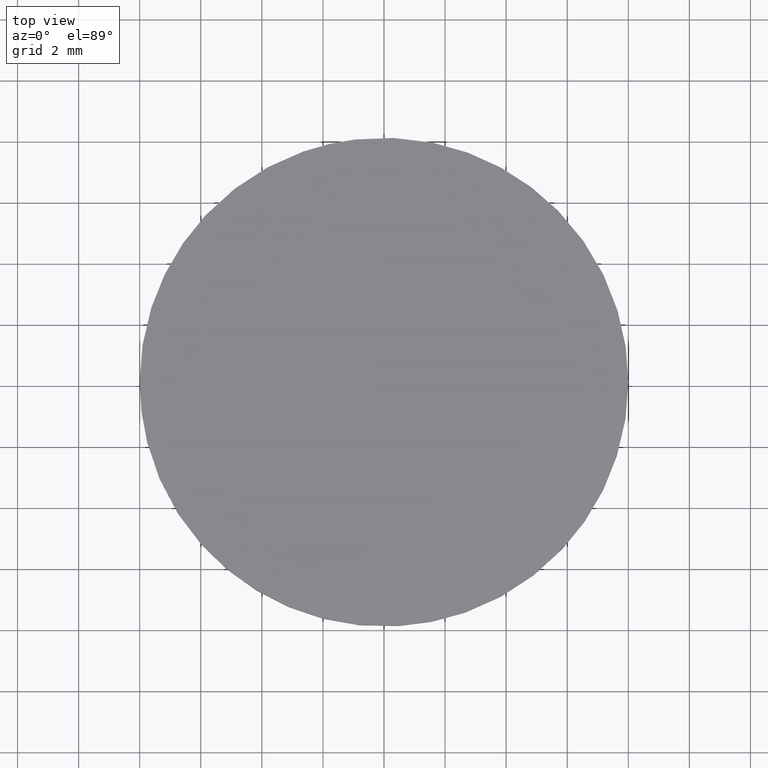
[diagram: clean part render]
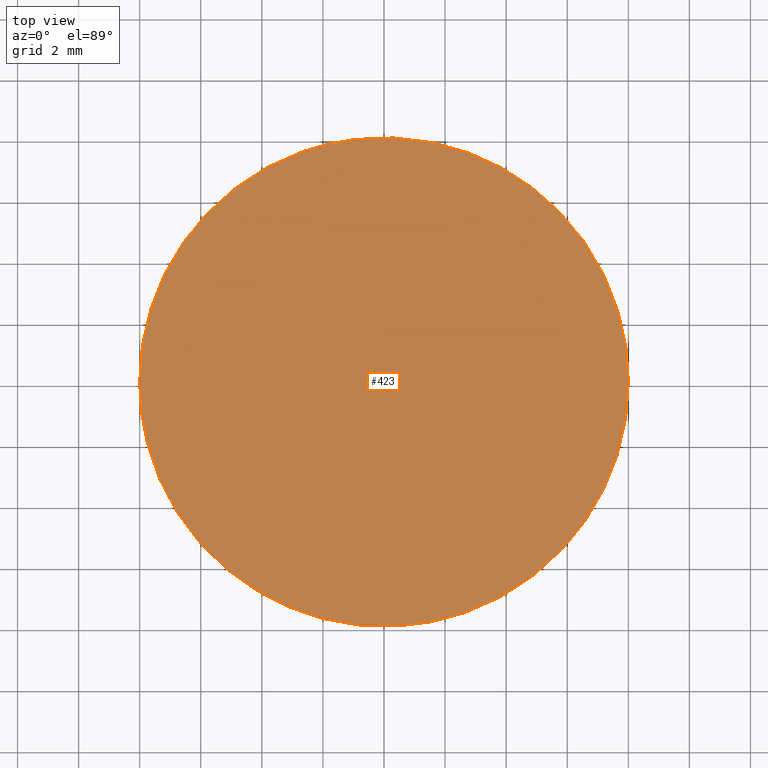
[diagram: same view with one face highlighted and labeled with its STEP entity id]
A machine part, top view. The second image highlights one B-rep face of the part: STEP entity #423.
In plain terms, the highlighted face is a freeform B-spline surface patch.
Its self-contained STEP definition (entity closure, byte-faithful):
#66=CARTESIAN_POINT('',(-0.944268819982941,7.944076812039399,7.899999999999874));
#67=VERTEX_POINT('',#66);
#68=CARTESIAN_POINT('',(8.0,0.0,7.900000000000000));
#69=VERTEX_POINT('',#68);
#70=CARTESIAN_POINT('',(-0.944268819982941,7.944076812039400,7.899999999999874));
#71=CARTESIAN_POINT('',(-0.473790401847546,8.0,7.900000000000000));
#72=CARTESIAN_POINT('',(0.0,8.0,7.900000000000000));
#73=CARTESIAN_POINT('',(8.0,8.0,7.900000000000000));
#74=CARTESIAN_POINT('',(8.0,0.0,7.900000000000000));
#82=(BOUNDED_CURVE()B_SPLINE_CURVE(2,(#70,#71,#72,#73,#74),.UNSPECIFIED.,.F.,.U.)B_SPLINE_CURVE_WITH_KNOTS((3,2,3),(0.229562581104653,0.250000000000000,0.500000000000000),.UNSPECIFIED.)CURVE()GEOMETRIC_REPRESENTATION_ITEM()RATIONAL_B_SPLINE_CURVE((0.956026965066855,0.976056074382012,1.0,0.707106781186548,1.0))REPRESENTATION_ITEM(''));
#83=EDGE_CURVE('',#67,#69,#82,.T.);
#85=CARTESIAN_POINT('',(0.488385459671300,-7.985078562091512,7.899999999999918));
#86=VERTEX_POINT('',#85);
#87=CARTESIAN_POINT('',(8.0,0.0,7.900000000000000));
#88=CARTESIAN_POINT('',(8.0,-7.525651232526574,7.900000000000001));
#89=CARTESIAN_POINT('',(0.488385459671300,-7.985078562091512,7.899999999999918));
#97=(BOUNDED_CURVE()B_SPLINE_CURVE(2,(#87,#88,#89),.UNSPECIFIED.,.F.,.U.)B_SPLINE_CURVE_WITH_KNOTS((3,3),(0.500000000000000,0.739333023969413),.UNSPECIFIED.)CURVE()GEOMETRIC_REPRESENTATION_ITEM()RATIONAL_B_SPLINE_CURVE((1.0,0.719603920964966,0.976072173966902))REPRESENTATION_ITEM(''));
#98=EDGE_CURVE('',#69,#86,#97,.T.);
#165=CARTESIAN_POINT('',(-8.0,0.0,7.900000000000000));
#166=VERTEX_POINT('',#165);
#167=CARTESIAN_POINT('',(-8.0,0.0,7.900000000000000));
#168=CARTESIAN_POINT('',(-8.000000000000002,7.105400762814723,7.900000000000000));
#169=CARTESIAN_POINT('',(-0.944268819982941,7.944076812039400,7.899999999999874));
#177=(BOUNDED_CURVE()B_SPLINE_CURVE(2,(#167,#168,#169),.UNSPECIFIED.,.F.,.U.)B_SPLINE_CURVE_WITH_KNOTS((3,3),(0.0,0.229562581104653),.UNSPECIFIED.)CURVE()GEOMETRIC_REPRESENTATION_ITEM()RATIONAL_B_SPLINE_CURVE((1.0,0.731050706804535,0.956026965066855))REPRESENTATION_ITEM(''));
#178=EDGE_CURVE('',#166,#67,#177,.T.);
#212=CARTESIAN_POINT('',(0.488385459671300,-7.985078562091512,7.899999999999918));
#213=CARTESIAN_POINT('',(0.244420674080147,-8.000000000000002,7.900000000000000));
#214=CARTESIAN_POINT('',(0.0,-8.0,7.900000000000000));
#215=CARTESIAN_POINT('',(-8.0,-8.0,7.900000000000000));
#216=CARTESIAN_POINT('',(-8.0,0.0,7.900000000000000));
#224=(BOUNDED_CURVE()B_SPLINE_CURVE(2,(#212,#213,#214,#215,#216),.UNSPECIFIED.,.F.,.U.)B_SPLINE_CURVE_WITH_KNOTS((3,2,3),(0.739333023969413,0.750000000000000,1.0),.UNSPECIFIED.)CURVE()GEOMETRIC_REPRESENTATION_ITEM()RATIONAL_B_SPLINE_CURVE((0.976072173966902,0.987502860221582,1.0,0.707106781186548,1.0))REPRESENTATION_ITEM(''));
#225=EDGE_CURVE('',#86,#166,#224,.T.);
#412=CARTESIAN_POINT('',(-8.799199968988896,-8.799005706689352,7.900000000000000));
#413=CARTESIAN_POINT('',(8.799200398142338,-8.799005706689352,7.900000000000000));
#414=CARTESIAN_POINT('',(-8.799199968988896,8.799054487130638,7.900000000000000));
#415=CARTESIAN_POINT('',(8.799200398142338,8.799054487130638,7.900000000000000));
#416=B_SPLINE_SURFACE_WITH_KNOTS('',1,1,((#412,#414),(#413,#415)),.UNSPECIFIED.,.F.,.F.,.U.,(2,2),(2,2),(0.0,17.598400367131230),(0.0,17.598060193819990),.UNSPECIFIED.);
#417=ORIENTED_EDGE('',*,*,#225,.F.);
#418=ORIENTED_EDGE('',*,*,#98,.F.);
#419=ORIENTED_EDGE('',*,*,#83,.F.);
#420=ORIENTED_EDGE('',*,*,#178,.F.);
#421=EDGE_LOOP('',(#417,#418,#419,#420));
#422=FACE_OUTER_BOUND('',#421,.T.);
#423=ADVANCED_FACE('',(#422),#416,.T.);